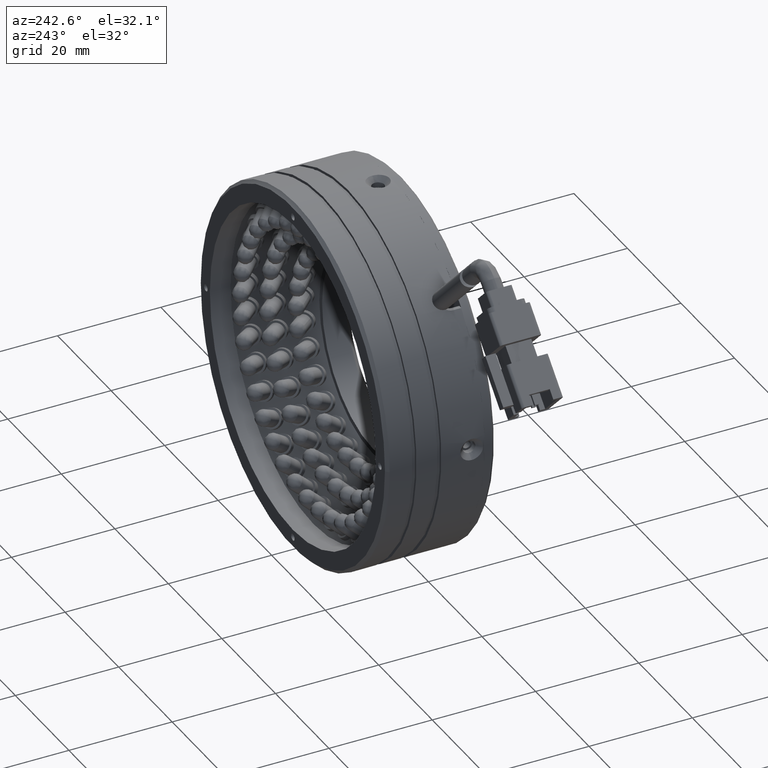
[diagram: clean part render]
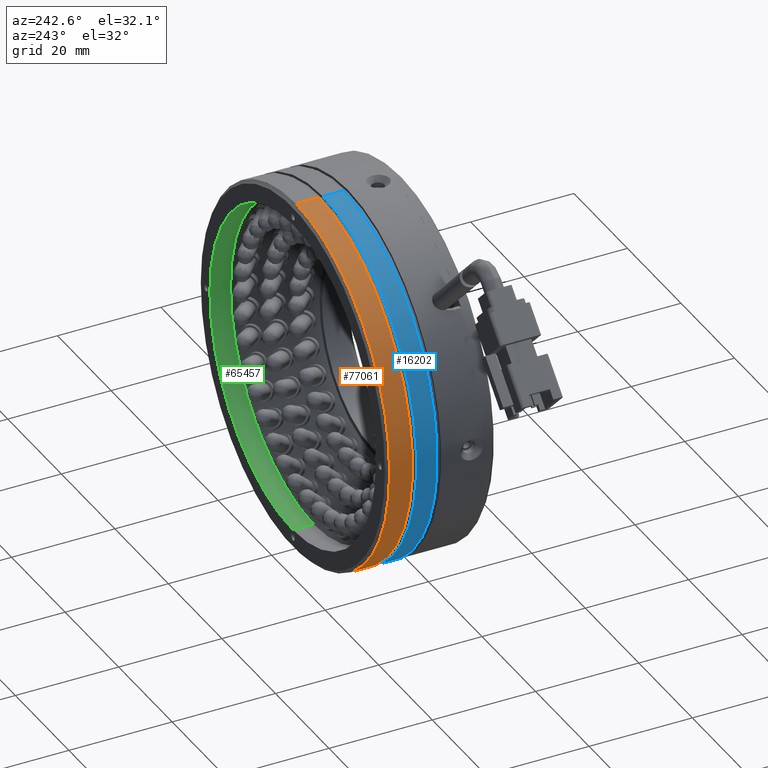
[diagram: same view with three faces highlighted in distinct colors, each labeled with its STEP entity id]
A machine part, auxiliary view with three faces highlighted in distinct colors.
Their STEP definitions:

[orange] entity #77061 — the highlighted cylindrical surface (partial cylindrical patch) has radius 35 mm, axis along (-0, -1, -0).
#945 = CARTESIAN_POINT ( 'NONE',  ( -2.716071020391490200, -13.32601881678534500, -35.00000000000001400 ) ) ;
#1972 = DIRECTION ( 'NONE',  ( 0.0000000000000000000, -9.912705577010321900E-017, -1.000000000000000000 ) ) ;
#5436 = VERTEX_POINT ( 'NONE', #29089 ) ;
#6046 = DIRECTION ( 'NONE',  ( 0.0000000000000000000, 1.000000000000000000, 0.0000000000000000000 ) ) ;
#8583 = VERTEX_POINT ( 'NONE', #26887 ) ;
#9158 = LINE ( 'NONE', #15523, #44831 ) ;
#15463 = EDGE_CURVE ( 'NONE', #25017, #5436, #74876, .T. ) ;
#15523 = CARTESIAN_POINT ( 'NONE',  ( -2.716071020391485700, -13.32601881678534500, 35.00000000000001400 ) ) ;
#20468 = EDGE_CURVE ( 'NONE', #25017, #60338, #53803, .T. ) ;
#22361 = ORIENTED_EDGE ( 'NONE', *, *, #20468, .F. ) ;
#24707 = CARTESIAN_POINT ( 'NONE',  ( -2.716071020391490200, 16.70727133510872900, -1.131636017531745300E-015 ) ) ;
#25017 = VERTEX_POINT ( 'NONE', #31693 ) ;
#26887 = CARTESIAN_POINT ( 'NONE',  ( -2.716071020391485700, 16.70727133510872900, 35.00000000000001400 ) ) ;
#26944 = DIRECTION ( 'NONE',  ( -0.0000000000000000000, -1.000000000000000000, -0.0000000000000000000 ) ) ;
#27239 = CARTESIAN_POINT ( 'NONE',  ( -2.716071020391490200, -13.32601881678534500, -1.131636017531745300E-015 ) ) ;
#29089 = CARTESIAN_POINT ( 'NONE',  ( -2.716071020391490200, 12.30727133510869100, -35.00000000000001400 ) ) ;
#31067 = AXIS2_PLACEMENT_3D ( 'NONE', #82247, #42158, #1972 ) ;
#31396 = DIRECTION ( 'NONE',  ( 0.0000000000000000000, -9.912705577010321900E-017, -1.000000000000000000 ) ) ;
#31693 = CARTESIAN_POINT ( 'NONE',  ( -2.716071020391490200, 16.70727133510872500, -35.00000000000001400 ) ) ;
#38332 = EDGE_CURVE ( 'NONE', #8583, #70053, #9158, .T. ) ;
#42158 = DIRECTION ( 'NONE',  ( 0.0000000000000000000, 1.000000000000000000, 0.0000000000000000000 ) ) ;
#43259 = AXIS2_PLACEMENT_3D ( 'NONE', #24707, #71499, #31396 ) ;
#44831 = VECTOR ( 'NONE', #62431, 1000.000000000000000 ) ;
#45063 = ORIENTED_EDGE ( 'NONE', *, *, #50881, .T. ) ;
#46242 = CARTESIAN_POINT ( 'NONE',  ( -2.716071020391490200, 12.30727133510869100, -1.131636017531745300E-015 ) ) ;
#47058 = EDGE_CURVE ( 'NONE', #60338, #8583, #61911, .T. ) ;
#50881 = EDGE_CURVE ( 'NONE', #5436, #70053, #56497, .T. ) ;
#52959 = DIRECTION ( 'NONE',  ( 0.0000000000000000000, 0.0000000000000000000, -1.000000000000000000 ) ) ;
#53803 = CIRCLE ( 'NONE', #43259, 35.00000000000001400 ) ;
#54306 = ORIENTED_EDGE ( 'NONE', *, *, #38332, .F. ) ;
#55411 = AXIS2_PLACEMENT_3D ( 'NONE', #27239, #26944, #74084 ) ;
#56497 = CIRCLE ( 'NONE', #64536, 35.00000000000001400 ) ;
#60338 = VERTEX_POINT ( 'NONE', #69995 ) ;
#60678 = CYLINDRICAL_SURFACE ( 'NONE', #55411, 35.00000000000001400 ) ;
#61911 = CIRCLE ( 'NONE', #31067, 35.00000000000001400 ) ;
#62431 = DIRECTION ( 'NONE',  ( -0.0000000000000000000, -1.000000000000000000, -0.0000000000000000000 ) ) ;
#64536 = AXIS2_PLACEMENT_3D ( 'NONE', #46242, #6046, #52959 ) ;
#68055 = DIRECTION ( 'NONE',  ( -0.0000000000000000000, -1.000000000000000000, -0.0000000000000000000 ) ) ;
#69995 = CARTESIAN_POINT ( 'NONE',  ( -37.71607102039150300, 16.70727133510872900, 3.154627779483993200E-015 ) ) ;
#70053 = VERTEX_POINT ( 'NONE', #70806 ) ;
#70806 = CARTESIAN_POINT ( 'NONE',  ( -2.716071020391485700, 12.30727133510869100, 35.00000000000001400 ) ) ;
#71499 = DIRECTION ( 'NONE',  ( 0.0000000000000000000, 1.000000000000000000, 0.0000000000000000000 ) ) ;
#71863 = EDGE_LOOP ( 'NONE', ( #54306, #73632, #22361, #80394, #45063 ) ) ;
#72753 = VECTOR ( 'NONE', #68055, 1000.000000000000000 ) ;
#73632 = ORIENTED_EDGE ( 'NONE', *, *, #47058, .F. ) ;
#74084 = DIRECTION ( 'NONE',  ( 0.0000000000000000000, 0.0000000000000000000, -1.000000000000000000 ) ) ;
#74876 = LINE ( 'NONE', #945, #72753 ) ;
#77061 = ADVANCED_FACE ( 'NONE', ( #86842 ), #60678, .T. ) ;
#80394 = ORIENTED_EDGE ( 'NONE', *, *, #15463, .T. ) ;
#82247 = CARTESIAN_POINT ( 'NONE',  ( -2.716071020391490200, 16.70727133510872900, -1.131636017531745300E-015 ) ) ;
#86842 = FACE_OUTER_BOUND ( 'NONE', #71863, .T. ) ;

[blue] entity #16202 — the highlighted cylindrical surface (partial cylindrical patch) has radius 35 mm, axis along (-0, -1, -0).
#171 = CARTESIAN_POINT ( 'NONE',  ( -2.716071020391490200, -13.32601881678534500, -35.00000000000001400 ) ) ;
#4024 = VECTOR ( 'NONE', #53801, 1000.000000000000000 ) ;
#5538 = AXIS2_PLACEMENT_3D ( 'NONE', #29712, #76574, #36412 ) ;
#6432 = AXIS2_PLACEMENT_3D ( 'NONE', #13050, #59954, #19788 ) ;
#6499 = VERTEX_POINT ( 'NONE', #9508 ) ;
#9508 = CARTESIAN_POINT ( 'NONE',  ( -2.716071020391490200, 7.507271335108692200, -35.00000000000001400 ) ) ;
#12121 = DIRECTION ( 'NONE',  ( 0.0000000000000000000, 0.0000000000000000000, -1.000000000000000000 ) ) ;
#13050 = CARTESIAN_POINT ( 'NONE',  ( -2.716071020391490200, 7.507271335108692200, -1.131636017531745300E-015 ) ) ;
#16202 = ADVANCED_FACE ( 'NONE', ( #70514 ), #46392, .T. ) ;
#18421 = VECTOR ( 'NONE', #18848, 1000.000000000000000 ) ;
#18848 = DIRECTION ( 'NONE',  ( -0.0000000000000000000, -1.000000000000000000, -0.0000000000000000000 ) ) ;
#19788 = DIRECTION ( 'NONE',  ( 0.0000000000000000000, 0.0000000000000000000, -1.000000000000000000 ) ) ;
#24000 = LINE ( 'NONE', #171, #4024 ) ;
#24015 = CARTESIAN_POINT ( 'NONE',  ( -2.716071020391485700, 11.50727133510869200, 35.00000000000001400 ) ) ;
#25392 = DIRECTION ( 'NONE',  ( -0.0000000000000000000, -1.000000000000000000, -0.0000000000000000000 ) ) ;
#29712 = CARTESIAN_POINT ( 'NONE',  ( -2.716071020391490200, 11.50727133510869200, -1.131636017531745300E-015 ) ) ;
#32070 = CARTESIAN_POINT ( 'NONE',  ( -2.716071020391490200, -13.32601881678534500, -1.131636017531745300E-015 ) ) ;
#34655 = ORIENTED_EDGE ( 'NONE', *, *, #50928, .T. ) ;
#36412 = DIRECTION ( 'NONE',  ( 0.0000000000000000000, 0.0000000000000000000, -1.000000000000000000 ) ) ;
#38355 = LINE ( 'NONE', #78923, #18421 ) ;
#45621 = CARTESIAN_POINT ( 'NONE',  ( -2.716071020391490200, 11.50727133510869200, -35.00000000000001400 ) ) ;
#46392 = CYLINDRICAL_SURFACE ( 'NONE', #82465, 35.00000000000001400 ) ;
#47474 = EDGE_LOOP ( 'NONE', ( #61244, #52221, #34655, #61520 ) ) ;
#50928 = EDGE_CURVE ( 'NONE', #57715, #6499, #24000, .T. ) ;
#52221 = ORIENTED_EDGE ( 'NONE', *, *, #82257, .T. ) ;
#52758 = CIRCLE ( 'NONE', #6432, 35.00000000000001400 ) ;
#53757 = CARTESIAN_POINT ( 'NONE',  ( -2.716071020391485700, 7.507271335108692200, 35.00000000000001400 ) ) ;
#53801 = DIRECTION ( 'NONE',  ( -0.0000000000000000000, -1.000000000000000000, -0.0000000000000000000 ) ) ;
#57591 = VERTEX_POINT ( 'NONE', #24015 ) ;
#57715 = VERTEX_POINT ( 'NONE', #45621 ) ;
#59954 = DIRECTION ( 'NONE',  ( 0.0000000000000000000, 1.000000000000000000, 0.0000000000000000000 ) ) ;
#61244 = ORIENTED_EDGE ( 'NONE', *, *, #80395, .F. ) ;
#61520 = ORIENTED_EDGE ( 'NONE', *, *, #85120, .T. ) ;
#70514 = FACE_OUTER_BOUND ( 'NONE', #47474, .T. ) ;
#72420 = VERTEX_POINT ( 'NONE', #53757 ) ;
#76574 = DIRECTION ( 'NONE',  ( -0.0000000000000000000, -1.000000000000000000, -0.0000000000000000000 ) ) ;
#78923 = CARTESIAN_POINT ( 'NONE',  ( -2.716071020391485700, -13.32601881678534500, 35.00000000000001400 ) ) ;
#80395 = EDGE_CURVE ( 'NONE', #57591, #72420, #38355, .T. ) ;
#82257 = EDGE_CURVE ( 'NONE', #57591, #57715, #86730, .T. ) ;
#82465 = AXIS2_PLACEMENT_3D ( 'NONE', #32070, #25392, #12121 ) ;
#85120 = EDGE_CURVE ( 'NONE', #6499, #72420, #52758, .T. ) ;
#86730 = CIRCLE ( 'NONE', #5538, 35.00000000000001400 ) ;

[green] entity #65457 — the highlighted cylindrical surface (partial cylindrical patch) has radius 31 mm, axis along (-0, -1, -0).
#413 = DIRECTION ( 'NONE',  ( -0.0000000000000000000, -1.000000000000000000, -0.0000000000000000000 ) ) ;
#1170 = AXIS2_PLACEMENT_3D ( 'NONE', #55752, #15602, #62527 ) ;
#5867 = CARTESIAN_POINT ( 'NONE',  ( -2.716071020391490200, -13.32601881678534500, -1.131636017531745300E-015 ) ) ;
#11486 = EDGE_CURVE ( 'NONE', #60124, #71798, #56239, .T. ) ;
#12344 = DIRECTION ( 'NONE',  ( -0.0000000000000000000, -1.000000000000000000, -0.0000000000000000000 ) ) ;
#15602 = DIRECTION ( 'NONE',  ( -0.0000000000000000000, -1.000000000000000000, -0.0000000000000000000 ) ) ;
#17312 = ORIENTED_EDGE ( 'NONE', *, *, #11486, .T. ) ;
#20589 = VECTOR ( 'NONE', #413, 1000.000000000000000 ) ;
#26141 = CARTESIAN_POINT ( 'NONE',  ( -2.716071020391490200, 13.30727133510869500, -31.00000000000003600 ) ) ;
#27185 = FACE_OUTER_BOUND ( 'NONE', #68942, .T. ) ;
#27761 = ORIENTED_EDGE ( 'NONE', *, *, #43421, .F. ) ;
#31873 = DIRECTION ( 'NONE',  ( -0.0000000000000000000, -1.000000000000000000, -0.0000000000000000000 ) ) ;
#32075 = ORIENTED_EDGE ( 'NONE', *, *, #34858, .F. ) ;
#33348 = CARTESIAN_POINT ( 'NONE',  ( -2.716071020391490200, 17.30727133510869800, -31.00000000000003600 ) ) ;
#33832 = CARTESIAN_POINT ( 'NONE',  ( -2.716071020391490200, -13.32601881678534500, -31.00000000000003600 ) ) ;
#34858 = EDGE_CURVE ( 'NONE', #60124, #72661, #58688, .T. ) ;
#36560 = CYLINDRICAL_SURFACE ( 'NONE', #49535, 31.00000000000003600 ) ;
#39592 = DIRECTION ( 'NONE',  ( 0.0000000000000000000, 0.0000000000000000000, -1.000000000000000000 ) ) ;
#43421 = EDGE_CURVE ( 'NONE', #72661, #62162, #52215, .T. ) ;
#49535 = AXIS2_PLACEMENT_3D ( 'NONE', #5867, #12344, #39592 ) ;
#49988 = CARTESIAN_POINT ( 'NONE',  ( -2.716071020391486200, 17.30727133510869800, 31.00000000000003600 ) ) ;
#50172 = VECTOR ( 'NONE', #85716, 1000.000000000000000 ) ;
#52215 = LINE ( 'NONE', #65519, #50172 ) ;
#55752 = CARTESIAN_POINT ( 'NONE',  ( -2.716071020391490200, 17.30727133510869800, -1.131636017531745300E-015 ) ) ;
#56239 = LINE ( 'NONE', #33832, #20589 ) ;
#58688 = CIRCLE ( 'NONE', #1170, 31.00000000000003600 ) ;
#60124 = VERTEX_POINT ( 'NONE', #33348 ) ;
#62162 = VERTEX_POINT ( 'NONE', #82917 ) ;
#62527 = DIRECTION ( 'NONE',  ( 0.0000000000000000000, 0.0000000000000000000, -1.000000000000000000 ) ) ;
#65457 = ADVANCED_FACE ( 'NONE', ( #27185 ), #36560, .F. ) ;
#65519 = CARTESIAN_POINT ( 'NONE',  ( -2.716071020391486200, -13.32601881678534500, 31.00000000000003600 ) ) ;
#66263 = AXIS2_PLACEMENT_3D ( 'NONE', #71994, #31873, #78735 ) ;
#68942 = EDGE_LOOP ( 'NONE', ( #27761, #32075, #17312, #76817 ) ) ;
#69734 = CIRCLE ( 'NONE', #66263, 31.00000000000003600 ) ;
#71798 = VERTEX_POINT ( 'NONE', #26141 ) ;
#71994 = CARTESIAN_POINT ( 'NONE',  ( -2.716071020391490200, 13.30727133510869500, -1.131636017531745300E-015 ) ) ;
#72661 = VERTEX_POINT ( 'NONE', #49988 ) ;
#76817 = ORIENTED_EDGE ( 'NONE', *, *, #83082, .T. ) ;
#78735 = DIRECTION ( 'NONE',  ( 0.0000000000000000000, 0.0000000000000000000, -1.000000000000000000 ) ) ;
#82917 = CARTESIAN_POINT ( 'NONE',  ( -2.716071020391486200, 13.30727133510869500, 31.00000000000003600 ) ) ;
#83082 = EDGE_CURVE ( 'NONE', #71798, #62162, #69734, .T. ) ;
#85716 = DIRECTION ( 'NONE',  ( -0.0000000000000000000, -1.000000000000000000, -0.0000000000000000000 ) ) ;